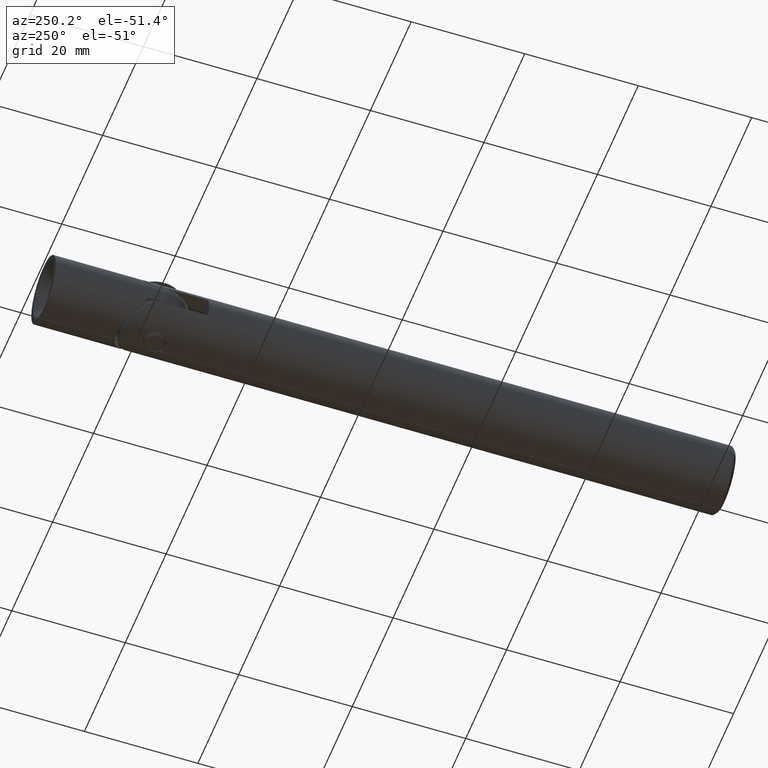
[diagram: clean part render]
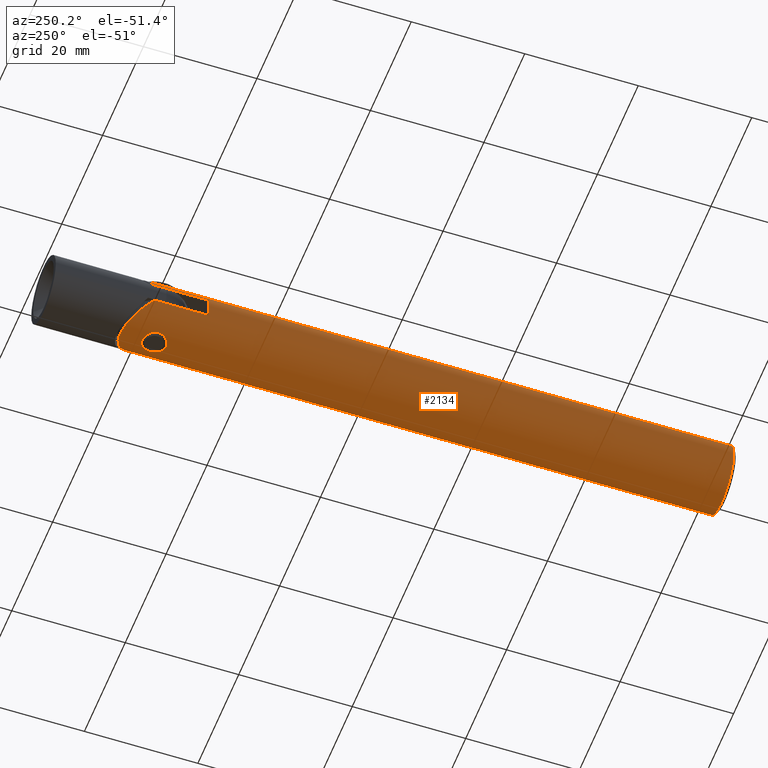
[diagram: same view with one face highlighted and labeled with its STEP entity id]
A machine part, auxiliary view. The second image highlights one B-rep face of the part: STEP entity #2134.
In plain terms, the highlighted cylindrical surface (bore or boss wall) has radius 6 mm, axis along (0, -1, -0).
Its self-contained STEP definition (entity closure, byte-faithful):
#23 = CARTESIAN_POINT ( 'NONE',  ( 4.461315443328743400, 59.49275179565076900, -4.029132544682180000 ) ) ;
#24 = CARTESIAN_POINT ( 'NONE',  ( -1.999999999999998200, 58.49999999999998600, -5.656854249492383200 ) ) ;
#45 = CARTESIAN_POINT ( 'NONE',  ( -5.907600806349173600, 54.67927346228744800, 1.055318436482937300 ) ) ;
#75 = CARTESIAN_POINT ( 'NONE',  ( 4.228689934642520000, 59.12696389998645000, 4.259931322625759800 ) ) ;
#83 = CARTESIAN_POINT ( 'NONE',  ( -6.000000000000021300, 54.40000000000000600, 0.1399303184415942000 ) ) ;
#130 = EDGE_CURVE ( 'NONE', #10797, #1767, #1331, .T. ) ;
#245 = ORIENTED_EDGE ( 'NONE', *, *, #11942, .F. ) ;
#251 = DIRECTION ( 'NONE',  ( -0.0000000000000000000, -1.000000000000000000, -0.0000000000000000000 ) ) ;
#257 = CARTESIAN_POINT ( 'NONE',  ( -1.999999999999998200, 58.49999999999998600, -5.656854249492383200 ) ) ;
#301 = VERTEX_POINT ( 'NONE', #5447 ) ;
#569 = ORIENTED_EDGE ( 'NONE', *, *, #857, .F. ) ;
#609 = VERTEX_POINT ( 'NONE', #4826 ) ;
#663 = CARTESIAN_POINT ( 'NONE',  ( 5.762565109398845000, 51.78738380356013200, 1.687899081049581800 ) ) ;
#748 = FACE_OUTER_BOUND ( 'NONE', #2882, .T. ) ;
#756 = CARTESIAN_POINT ( 'NONE',  ( 5.879915694987170500, 51.64459168928934200, -1.217818505035710400 ) ) ;
#761 = DIRECTION ( 'NONE',  ( 0.0000000000000000000, 1.000000000000000000, 0.0000000000000000000 ) ) ;
#828 = LINE ( 'NONE', #6771, #8385 ) ;
#835 = AXIS2_PLACEMENT_3D ( 'NONE', #1140, #12121, #8659 ) ;
#846 = CARTESIAN_POINT ( 'NONE',  ( 4.807646436193606700, 53.01764860879649900, 3.594557953550066900 ) ) ;
#857 = EDGE_CURVE ( 'NONE', #301, #11149, #2700, .T. ) ;
#869 = VERTEX_POINT ( 'NONE', #6050 ) ;
#972 = CARTESIAN_POINT ( 'NONE',  ( 8.399999999999989700, 64.89999999999999100, 3.394112549695417900 ) ) ;
#998 = CARTESIAN_POINT ( 'NONE',  ( -5.995114773543329000, 54.41384445011706100, 0.2773110508732142300 ) ) ;
#1009 = CARTESIAN_POINT ( 'NONE',  ( -1.999999999999990900, -2.668805347656614400E-016, -5.656854249492383200 ) ) ;
#1016 = DIRECTION ( 'NONE',  ( -0.0000000000000000000, 1.000000000000000000, -0.0000000000000000000 ) ) ;
#1055 = CARTESIAN_POINT ( 'NONE',  ( -5.862382304820061000, 58.16817008969967900, -1.282893921177704400 ) ) ;
#1081 = CARTESIAN_POINT ( 'NONE',  ( 2.000000000000001800, 58.50000000000000700, 5.656854249492374400 ) ) ;
#1102 = CARTESIAN_POINT ( 'NONE',  ( -5.659936331073165400, 57.17888782546736300, 1.992054000542899900 ) ) ;
#1140 = CARTESIAN_POINT ( 'NONE',  ( 0.0000000000000000000, 0.0000000000000000000, 0.0000000000000000000 ) ) ;
#1145 = CARTESIAN_POINT ( 'NONE',  ( -5.838097357248575900, 58.08182860238455400, -1.388036528353562500 ) ) ;
#1189 = CARTESIAN_POINT ( 'NONE',  ( 5.999766363344013700, 61.49971963595898200, -0.2522049148149580500 ) ) ;
#1199 = CARTESIAN_POINT ( 'NONE',  ( -5.995120906657179600, 58.58617705065579900, 0.2777402781516125600 ) ) ;
#1255 = VERTEX_POINT ( 'NONE', #11290 ) ;
#1331 = CIRCLE ( 'NONE', #9869, 6.000000000000000000 ) ;
#1368 = CARTESIAN_POINT ( 'NONE',  ( -6.000000000000023100, 54.40000000000000600, 0.0000000000000000000 ) ) ;
#1369 = EDGE_CURVE ( 'NONE', #4776, #1255, #5989, .T. ) ;
#1540 = CARTESIAN_POINT ( 'NONE',  ( 4.000000000000000000, 58.73606797749978600, -4.472135954999579600 ) ) ;
#1603 = EDGE_CURVE ( 'NONE', #4772, #4772, #7017, .T. ) ;
#1653 = CARTESIAN_POINT ( 'NONE',  ( 0.0000000000000000000, 49.00000000000000000, 0.0000000000000000000 ) ) ;
#1767 = VERTEX_POINT ( 'NONE', #7717 ) ;
#1783 = CARTESIAN_POINT ( 'NONE',  ( 5.248398599822291300, 52.43162905925137100, -2.915557178308601800 ) ) ;
#1821 = CARTESIAN_POINT ( 'NONE',  ( 5.246070261389828500, 52.43463899172638100, 2.919636966049659100 ) ) ;
#2093 = DIRECTION ( 'NONE',  ( 2.664535259100376100E-015, 0.0000000000000000000, -1.000000000000000000 ) ) ;
#2127 = CARTESIAN_POINT ( 'NONE',  ( -5.645550960297863500, 55.95174454621473400, 2.031893931028324800 ) ) ;
#2134 = ADVANCED_FACE ( 'NONE', ( #10877, #11579, #5879, #748 ), #13813, .T. ) ;
#2171 = CARTESIAN_POINT ( 'NONE',  ( -5.714120875558125000, 55.44005939666729400, 1.833344241584948600 ) ) ;
#2194 = CARTESIAN_POINT ( 'NONE',  ( 2.000000000000001800, 58.50000000000000700, -5.656854249492374400 ) ) ;
#2213 = VERTEX_POINT ( 'NONE', #1368 ) ;
#2221 = CARTESIAN_POINT ( 'NONE',  ( -5.995199655506464600, 58.58640234378476200, -0.2760850920997882700 ) ) ;
#2245 = DIRECTION ( 'NONE',  ( -0.0000000000000000000, -1.000000000000000000, -0.0000000000000000000 ) ) ;
#2262 = CARTESIAN_POINT ( 'NONE',  ( 5.691937540506648600, 61.12619348983290700, -1.911543563505184700 ) ) ;
#2267 = CARTESIAN_POINT ( 'NONE',  ( -5.999981683544567600, 58.59994766726690300, 0.1386258689238636400 ) ) ;
#2308 = CARTESIAN_POINT ( 'NONE',  ( 4.923739787570558400, 60.14038394394098200, 3.434699158272672500 ) ) ;
#2313 = CARTESIAN_POINT ( 'NONE',  ( -5.788737489101016800, 57.88859097663733200, 1.581278183707605800 ) ) ;
#2341 = CARTESIAN_POINT ( 'NONE',  ( -1.999999999999997300, 49.00000000000000000, 5.656854249492382400 ) ) ;
#2401 = CARTESIAN_POINT ( 'NONE',  ( 5.984333450484842700, 61.48123203078348800, -0.4991232668755338800 ) ) ;
#2692 = CARTESIAN_POINT ( 'NONE',  ( -1.999999999999998200, 58.49999999999998600, 5.656854249492383200 ) ) ;
#2700 = CIRCLE ( 'NONE', #13203, 6.000000000000000000 ) ;
#2760 = VECTOR ( 'NONE', #761, 1000.000000000000000 ) ;
#2879 = CARTESIAN_POINT ( 'NONE',  ( 5.984333450484842700, 51.51876796921653300, 0.4991232668755338800 ) ) ;
#2882 = EDGE_LOOP ( 'NONE', ( #3606, #245, #4086, #7681, #4793, #6308, #569, #10318 ) ) ;
#2980 = CARTESIAN_POINT ( 'NONE',  ( 6.000228370917401600, 51.49972595484590000, -0.2409631312233150900 ) ) ;
#3058 = CARTESIAN_POINT ( 'NONE',  ( 4.580100148548351200, 53.33921903976218500, -3.880325838228255300 ) ) ;
#3214 = CARTESIAN_POINT ( 'NONE',  ( -5.696257661656738400, 57.43453772302084600, 1.885684773470328600 ) ) ;
#3266 = CARTESIAN_POINT ( 'NONE',  ( -5.660027428170492300, 57.17956898203461700, -1.991790499454961600 ) ) ;
#3311 = CARTESIAN_POINT ( 'NONE',  ( 5.922818591520822000, 61.40715862449707900, -0.9907526502935075600 ) ) ;
#3318 = CARTESIAN_POINT ( 'NONE',  ( -5.645484189008471700, 57.04741240069299100, 2.032077313730789000 ) ) ;
#3353 = CARTESIAN_POINT ( 'NONE',  ( 6.000228370917401600, 61.50027404515408600, 0.2409631312233150900 ) ) ;
#3357 = CARTESIAN_POINT ( 'NONE',  ( -5.764126152619214200, 55.20779043723294400, -1.677594955765177900 ) ) ;
#3406 = VECTOR ( 'NONE', #2245, 1000.000000000000000 ) ;
#3426 = VECTOR ( 'NONE', #10463, 1000.000000000000000 ) ;
#3594 = EDGE_CURVE ( 'NONE', #609, #4776, #8345, .T. ) ;
#3606 = ORIENTED_EDGE ( 'NONE', *, *, #7859, .F. ) ;
#3613 = CARTESIAN_POINT ( 'NONE',  ( 4.807646436193606700, 59.98235139120350100, -3.594557953550066900 ) ) ;
#4065 = CARTESIAN_POINT ( 'NONE',  ( 4.000000000000000000, 54.26393202250022100, -4.472135954999579600 ) ) ;
#4086 = ORIENTED_EDGE ( 'NONE', *, *, #130, .F. ) ;
#4168 = CARTESIAN_POINT ( 'NONE',  ( 4.462846586125851700, 53.51066555571642200, -4.013954880855022700 ) ) ;
#4201 = ORIENTED_EDGE ( 'NONE', *, *, #1603, .T. ) ;
#4269 = CARTESIAN_POINT ( 'NONE',  ( -5.620495973474040100, 56.63830719845388700, -2.100005955277878000 ) ) ;
#4325 = CARTESIAN_POINT ( 'NONE',  ( -5.645590759985880800, 57.04844510572134900, -2.031781744484796500 ) ) ;
#4372 = CARTESIAN_POINT ( 'NONE',  ( -6.000000000000022200, 54.40000000000000600, 1.626303258728256700E-016 ) ) ;
#4406 = CARTESIAN_POINT ( 'NONE',  ( 5.879915694987170500, 61.35540831071066500, 1.217818505035710400 ) ) ;
#4413 = CARTESIAN_POINT ( 'NONE',  ( -5.907370391185573100, 58.31997403456112700, 1.056572057962526800 ) ) ;
#4465 = CARTESIAN_POINT ( 'NONE',  ( -6.000000000000023100, 54.40000000000000600, -0.1399303184415913700 ) ) ;
#4507 = CARTESIAN_POINT ( 'NONE',  ( 4.810527154161735400, 59.98631473174707200, 3.590692757759570400 ) ) ;
#4754 = DIRECTION ( 'NONE',  ( 0.0000000000000000000, 0.0000000000000000000, -1.000000000000000000 ) ) ;
#4767 = VECTOR ( 'NONE', #11309, 1000.000000000000000 ) ;
#4772 = VERTEX_POINT ( 'NONE', #11125 ) ;
#4776 = VERTEX_POINT ( 'NONE', #13700 ) ;
#4793 = ORIENTED_EDGE ( 'NONE', *, *, #13952, .F. ) ;
#4826 = CARTESIAN_POINT ( 'NONE',  ( 4.000000000000000000, 54.26393202250022100, 4.472135954999579600 ) ) ;
#4930 = EDGE_CURVE ( 'NONE', #2213, #2213, #12972, .T. ) ;
#5074 = CARTESIAN_POINT ( 'NONE',  ( 5.440223127281996100, 52.18700398623339300, 2.539587668569149400 ) ) ;
#5167 = CARTESIAN_POINT ( 'NONE',  ( 5.765159873374364500, 51.78421272223528900, -1.679113494019366800 ) ) ;
#5373 = CARTESIAN_POINT ( 'NONE',  ( -5.862417377531366800, 54.83169686617355900, 1.282773082496066800 ) ) ;
#5413 = CARTESIAN_POINT ( 'NONE',  ( -5.625674900985019100, 56.22331156717722000, 2.086293483836127600 ) ) ;
#5447 = CARTESIAN_POINT ( 'NONE',  ( 2.000000000000002700, 49.00000000000000000, -5.656854249492378800 ) ) ;
#5466 = CARTESIAN_POINT ( 'NONE',  ( -5.625794041661614600, 56.77866755094038400, -2.085970634324534300 ) ) ;
#5519 = CARTESIAN_POINT ( 'NONE',  ( -5.837892061353310100, 54.91897263378792400, -1.388843066986826800 ) ) ;
#5536 = AXIS2_PLACEMENT_3D ( 'NONE', #6414, #12125, #9932 ) ;
#5558 = CARTESIAN_POINT ( 'NONE',  ( 5.248398599822291300, 60.56837094074863600, 2.915557178308601800 ) ) ;
#5694 = CARTESIAN_POINT ( 'NONE',  ( 5.533395651579973600, 60.92966587720659500, 2.330991376508200700 ) ) ;
#5700 = CARTESIAN_POINT ( 'NONE',  ( -1.999999999999998200, 58.49999999999998600, 5.656854249492383200 ) ) ;
#5771 = VERTEX_POINT ( 'NONE', #14015 ) ;
#5879 = FACE_BOUND ( 'NONE', #6328, .T. ) ;
#5885 =( BOUNDED_CURVE ( )  B_SPLINE_CURVE ( 3, ( #1081, #972, #8598, #2194 ),
 .UNSPECIFIED., .F., .F. ) 
 B_SPLINE_CURVE_WITH_KNOTS ( ( 4, 4 ),
 ( 1.910633236249020400, 4.372552070930566100 ),
 .UNSPECIFIED. ) 
 CURVE ( )  GEOMETRIC_REPRESENTATION_ITEM ( )  RATIONAL_B_SPLINE_CURVE ( ( 1.000000000000000000, 0.5555555555555566900, 0.5555555555555566900, 1.000000000000000000 ) ) 
 REPRESENTATION_ITEM ( '' )  );
#5901 = DIRECTION ( 'NONE',  ( -0.0000000000000000000, 1.000000000000000000, -0.0000000000000000000 ) ) ;
#5921 = ORIENTED_EDGE ( 'NONE', *, *, #7370, .F. ) ;
#5928 = CARTESIAN_POINT ( 'NONE',  ( 4.223394625119318800, 59.13568843155969300, -4.272325727969625400 ) ) ;
#5989 = LINE ( 'NONE', #13746, #3426 ) ;
#6050 = CARTESIAN_POINT ( 'NONE',  ( 4.000000000000000000, 58.73606797749978600, 4.472135954999579600 ) ) ;
#6065 = B_SPLINE_CURVE_WITH_KNOTS ( 'NONE', 3,
 ( #1540, #5928, #23, #3613, #9365, #7263, #8399, #14031, #10889, #2262, #10076, #10997, #3311, #2401, #1189, #3353, #13231, #7709, #4406, #12157, #7760, #5694, #8852, #5558, #6555, #2308, #4507, #12119, #9979, #75, #7844, #12300 ),
 .UNSPECIFIED., .F., .F.,
 ( 4, 2, 2, 2, 2, 2, 2, 2, 2, 2, 2, 2, 2, 2, 2, 4 ),
 ( 0.0000000000000000000, 0.001477833795125598200, 0.002216750692688403600, 0.002955667590251208500, 0.003694584487814013500, 0.004433501385376819300, 0.005172418282939624700, 0.005911335180502430000, 0.006650252078065235400, 0.007389168975628041700, 0.008128085873190846200, 0.008867002770753652400, 0.009605919668316457000, 0.01034483656587926300, 0.01108375346344206900, 0.01182267036100487900 ),
 .UNSPECIFIED. ) ;
#6119 = CARTESIAN_POINT ( 'NONE',  ( 5.141831821744305300, 52.56964407484139900, 3.098745170681814100 ) ) ;
#6303 = CARTESIAN_POINT ( 'NONE',  ( 5.530168985700138200, 52.07436080879349300, 2.338671150420102300 ) ) ;
#6308 = ORIENTED_EDGE ( 'NONE', *, *, #8488, .F. ) ;
#6328 = EDGE_LOOP ( 'NONE', ( #9819, #9535, #5921, #6759 ) ) ;
#6414 = CARTESIAN_POINT ( 'NONE',  ( 0.0000000000000000000, -43.49999999999998600, 0.0000000000000000000 ) ) ;
#6451 = CARTESIAN_POINT ( 'NONE',  ( -5.660214997163485900, 55.81905022517152300, -1.991246174694212100 ) ) ;
#6461 = DIRECTION ( 'NONE',  ( 0.0000000000000000000, 1.000000000000000000, 0.0000000000000000000 ) ) ;
#6506 = CARTESIAN_POINT ( 'NONE',  ( -5.645475466979342500, 55.95248546903614800, -2.032103204105489600 ) ) ;
#6524 = CARTESIAN_POINT ( 'NONE',  ( 0.0000000000000000000, 49.00000000000000000, 0.0000000000000000000 ) ) ;
#6555 = CARTESIAN_POINT ( 'NONE',  ( 5.142492798692936500, 60.43121023963444600, 3.097602237043295000 ) ) ;
#6562 = CARTESIAN_POINT ( 'NONE',  ( -5.837728522015402700, 54.91958793518747200, 1.389511688007993400 ) ) ;
#6601 = CARTESIAN_POINT ( 'NONE',  ( -5.962656029525710700, 54.50857432222212400, -0.6805891605157762300 ) ) ;
#6648 = CARTESIAN_POINT ( 'NONE',  ( -5.962577447961945300, 54.50881110973995200, 0.6812341139050348500 ) ) ;
#6759 = ORIENTED_EDGE ( 'NONE', *, *, #1369, .F. ) ;
#6771 = CARTESIAN_POINT ( 'NONE',  ( 4.000000000000000000, 0.0000000000000000000, 4.472135954999579600 ) ) ;
#7017 = CIRCLE ( 'NONE', #5536, 6.000000000000000000 ) ;
#7126 = EDGE_CURVE ( 'NONE', #5771, #301, #11160, .T. ) ;
#7263 = CARTESIAN_POINT ( 'NONE',  ( 5.141831821744305300, 60.43035592515862200, -3.098745170681814100 ) ) ;
#7313 = CARTESIAN_POINT ( 'NONE',  ( 5.877739533197925900, 51.64722586606338000, 1.228144098935931800 ) ) ;
#7320 = CARTESIAN_POINT ( 'NONE',  ( 2.000000000000017300, 6.004812032227462000E-016, 5.656854249492374400 ) ) ;
#7370 = EDGE_CURVE ( 'NONE', #1255, #869, #6065, .T. ) ;
#7412 = CARTESIAN_POINT ( 'NONE',  ( 4.228689934642520000, 53.87303610001356400, -4.259931322625759800 ) ) ;
#7572 = CARTESIAN_POINT ( 'NONE',  ( -5.976522812652002700, 54.46789056384757500, 0.5472454995192391800 ) ) ;
#7620 = CARTESIAN_POINT ( 'NONE',  ( -5.625710555255437000, 56.77710622439826000, 2.086195265504061400 ) ) ;
#7637 = CARTESIAN_POINT ( 'NONE',  ( -1.999999999999997300, 49.00000000000000000, -5.656854249492383200 ) ) ;
#7656 = EDGE_LOOP ( 'NONE', ( #4201 ) ) ;
#7681 = ORIENTED_EDGE ( 'NONE', *, *, #8759, .F. ) ;
#7709 = CARTESIAN_POINT ( 'NONE',  ( 5.924588586478166400, 61.40929349922409100, 0.9800564602597378000 ) ) ;
#7716 = CARTESIAN_POINT ( 'NONE',  ( -5.620534980703879100, 56.36030547766085200, 2.099901555218826000 ) ) ;
#7717 = CARTESIAN_POINT ( 'NONE',  ( 2.000000000000002700, 49.00000000000000000, 5.656854249492378800 ) ) ;
#7760 = CARTESIAN_POINT ( 'NONE',  ( 5.694344034310240100, 61.12914963333969400, 1.904319892558799900 ) ) ;
#7814 =( BOUNDED_CURVE ( )  B_SPLINE_CURVE ( 3, ( #24, #8778, #12167, #5700 ),
 .UNSPECIFIED., .F., .F. ) 
 B_SPLINE_CURVE_WITH_KNOTS ( ( 4, 4 ),
 ( 1.910633236249017700, 4.372552070930568700 ),
 .UNSPECIFIED. ) 
 CURVE ( )  GEOMETRIC_REPRESENTATION_ITEM ( )  RATIONAL_B_SPLINE_CURVE ( ( 1.000000000000000000, 0.5555555555555549100, 0.5555555555555549100, 1.000000000000000000 ) ) 
 REPRESENTATION_ITEM ( '' )  );
#7844 = CARTESIAN_POINT ( 'NONE',  ( 4.111701916349391100, 58.93588644003916200, 4.372226723729887100 ) ) ;
#7859 = EDGE_CURVE ( 'NONE', #8958, #5771, #5885, .T. ) ;
#8345 = B_SPLINE_CURVE_WITH_KNOTS ( 'NONE', 3,
 ( #11479, #13844, #9574, #846, #10743, #6119, #1821, #5074, #6303, #9487, #663, #7313, #10656, #2879, #13939, #2980, #11677, #11816, #756, #5167, #12889, #13986, #8422, #1783, #9626, #14025, #10706, #3058, #4168, #7412, #9438, #4065 ),
 .UNSPECIFIED., .F., .F.,
 ( 4, 2, 2, 2, 2, 2, 2, 2, 2, 2, 2, 2, 2, 2, 2, 4 ),
 ( 0.0000000000000000000, 0.001477833795125598200, 0.002216750692688403600, 0.002955667590251208500, 0.003694584487814013500, 0.004433501385376819300, 0.005172418282939624700, 0.005911335180502430000, 0.006650252078065235400, 0.007389168975628041700, 0.008128085873190846200, 0.008867002770753652400, 0.009605919668316457000, 0.01034483656587926300, 0.01108375346344206900, 0.01182267036100487900 ),
 .UNSPECIFIED. ) ;
#8385 = VECTOR ( 'NONE', #251, 1000.000000000000000 ) ;
#8399 = CARTESIAN_POINT ( 'NONE',  ( 5.246070261389828500, 60.56536100827363400, -2.919636966049659100 ) ) ;
#8422 = CARTESIAN_POINT ( 'NONE',  ( 5.443493514455042300, 52.18287411686601700, -2.532694194072648800 ) ) ;
#8488 = EDGE_CURVE ( 'NONE', #11149, #10911, #14164, .T. ) ;
#8598 = CARTESIAN_POINT ( 'NONE',  ( 8.399999999999989700, 64.89999999999999100, -3.394112549695417900 ) ) ;
#8659 = DIRECTION ( 'NONE',  ( 0.0000000000000000000, 0.0000000000000000000, -1.000000000000000000 ) ) ;
#8664 = CARTESIAN_POINT ( 'NONE',  ( -5.764135783203780500, 55.20780291030302300, 1.677500159237455900 ) ) ;
#8716 = CARTESIAN_POINT ( 'NONE',  ( -5.976435261253111100, 58.53185488229728200, -0.5485102145950200300 ) ) ;
#8759 = EDGE_CURVE ( 'NONE', #9937, #10797, #12896, .T. ) ;
#8775 = CARTESIAN_POINT ( 'NONE',  ( -5.717652440165350600, 57.55537900398620400, 1.820638573103270800 ) ) ;
#8778 = CARTESIAN_POINT ( 'NONE',  ( -8.400000000000003900, 64.90000000000000600, -3.394112549695431600 ) ) ;
#8823 = CARTESIAN_POINT ( 'NONE',  ( -5.976552651432207600, 54.46780339334684800, -0.5468734143387925500 ) ) ;
#8852 = CARTESIAN_POINT ( 'NONE',  ( 5.443493514455042300, 60.81712588313401100, 2.532694194072648800 ) ) ;
#8859 = CARTESIAN_POINT ( 'NONE',  ( -6.000018211104130500, 58.60005203172936900, -0.1370357647622493200 ) ) ;
#8958 = VERTEX_POINT ( 'NONE', #9509 ) ;
#9006 = CARTESIAN_POINT ( 'NONE',  ( -6.000000000000022200, 54.40000000000000600, 1.626303258728256700E-016 ) ) ;
#9076 = CARTESIAN_POINT ( 'NONE',  ( -1.999999999999990900, -2.668805347656614400E-016, 5.656854249492383200 ) ) ;
#9365 = CARTESIAN_POINT ( 'NONE',  ( 4.922195747481139500, 60.13830650053680700, -3.436952885828493900 ) ) ;
#9438 = CARTESIAN_POINT ( 'NONE',  ( 4.111701916349391100, 54.06411355996083800, -4.372226723729887100 ) ) ;
#9487 = CARTESIAN_POINT ( 'NONE',  ( 5.691937540506648600, 51.87380651016710000, 1.911543563505184700 ) ) ;
#9509 = CARTESIAN_POINT ( 'NONE',  ( 2.000000000000001800, 58.50000000000000700, 5.656854249492374400 ) ) ;
#9535 = ORIENTED_EDGE ( 'NONE', *, *, #13382, .F. ) ;
#9574 = CARTESIAN_POINT ( 'NONE',  ( 4.461315443328743400, 53.50724820434923100, 4.029132544682180000 ) ) ;
#9610 = EDGE_LOOP ( 'NONE', ( #13923 ) ) ;
#9626 = CARTESIAN_POINT ( 'NONE',  ( 5.142492798692936500, 52.56878976036555400, -3.097602237043295000 ) ) ;
#9785 = CARTESIAN_POINT ( 'NONE',  ( -5.928263369488839800, 58.38594329488584100, 0.9337857770029894800 ) ) ;
#9819 = ORIENTED_EDGE ( 'NONE', *, *, #3594, .F. ) ;
#9840 = CARTESIAN_POINT ( 'NONE',  ( -5.838037281970526800, 58.08157595086449700, 1.388251816607981400 ) ) ;
#9869 = AXIS2_PLACEMENT_3D ( 'NONE', #6524, #1016, #2093 ) ;
#9883 = CARTESIAN_POINT ( 'NONE',  ( -5.928316084038137900, 58.38611217464042400, -0.9335114993840649700 ) ) ;
#9931 = CARTESIAN_POINT ( 'NONE',  ( -5.995110587510880300, 54.41385704966407400, -0.2773106023340061200 ) ) ;
#9932 = DIRECTION ( 'NONE',  ( 0.0000000000000000000, 0.0000000000000000000, 1.000000000000000000 ) ) ;
#9937 = VERTEX_POINT ( 'NONE', #2692 ) ;
#9979 = CARTESIAN_POINT ( 'NONE',  ( 4.462846586125851700, 59.48933444428358500, 4.013954880855022700 ) ) ;
#9987 = CARTESIAN_POINT ( 'NONE',  ( -5.620461810260684900, 56.63671887526762600, 2.100097390676811700 ) ) ;
#10076 = CARTESIAN_POINT ( 'NONE',  ( 5.762565109398845000, 61.21261619643987500, -1.687899081049581800 ) ) ;
#10318 = ORIENTED_EDGE ( 'NONE', *, *, #7126, .F. ) ;
#10463 = DIRECTION ( 'NONE',  ( 0.0000000000000000000, 1.000000000000000000, 0.0000000000000000000 ) ) ;
#10656 = CARTESIAN_POINT ( 'NONE',  ( 5.922818591520822000, 51.59284137550290700, 0.9907526502935075600 ) ) ;
#10706 = CARTESIAN_POINT ( 'NONE',  ( 4.810527154161735400, 53.01368526825293500, -3.590692757759570400 ) ) ;
#10743 = CARTESIAN_POINT ( 'NONE',  ( 4.922195747481139500, 52.86169349946319300, 3.436952885828493900 ) ) ;
#10797 = VERTEX_POINT ( 'NONE', #2341 ) ;
#10864 = CARTESIAN_POINT ( 'NONE',  ( -5.962585327761369000, 58.49120549525581200, 0.6810570200218724100 ) ) ;
#10877 = FACE_OUTER_BOUND ( 'NONE', #7656, .T. ) ;
#10889 = CARTESIAN_POINT ( 'NONE',  ( 5.530168985700138200, 60.92563919120651400, -2.338671150420102300 ) ) ;
#10907 = CARTESIAN_POINT ( 'NONE',  ( -5.907416619898394400, 58.32011985356817300, -1.056301083882026800 ) ) ;
#10911 = VERTEX_POINT ( 'NONE', #257 ) ;
#10951 = CARTESIAN_POINT ( 'NONE',  ( -5.714140928245533300, 55.43979168332396800, -1.833295944888412100 ) ) ;
#10997 = CARTESIAN_POINT ( 'NONE',  ( 5.877739533197925900, 61.35277413393662000, -1.228144098935931800 ) ) ;
#11006 = CARTESIAN_POINT ( 'NONE',  ( -5.862276931221734000, 58.16780435487956400, 1.283385613909027800 ) ) ;
#11059 = CARTESIAN_POINT ( 'NONE',  ( -5.928068568057647700, 54.61466174882501400, 0.9351004188317556500 ) ) ;
#11125 = CARTESIAN_POINT ( 'NONE',  ( 0.0000000000000000000, -43.49999999999998600, 6.000000000000000000 ) ) ;
#11149 = VERTEX_POINT ( 'NONE', #7637 ) ;
#11160 = LINE ( 'NONE', #12188, #3406 ) ;
#11290 = CARTESIAN_POINT ( 'NONE',  ( 4.000000000000000000, 58.73606797749978600, -4.472135954999579600 ) ) ;
#11309 = DIRECTION ( 'NONE',  ( -0.0000000000000000000, -1.000000000000000000, -0.0000000000000000000 ) ) ;
#11479 = CARTESIAN_POINT ( 'NONE',  ( 4.000000000000000000, 54.26393202250022100, 4.472135954999579600 ) ) ;
#11579 = FACE_BOUND ( 'NONE', #9610, .T. ) ;
#11677 = CARTESIAN_POINT ( 'NONE',  ( 5.985179456329539100, 51.51775292995564100, -0.4887611480621569200 ) ) ;
#11816 = CARTESIAN_POINT ( 'NONE',  ( 5.924588586478166400, 51.59070650077591600, -0.9800564602597378000 ) ) ;
#11942 = EDGE_CURVE ( 'NONE', #1767, #8958, #13770, .T. ) ;
#11972 = CARTESIAN_POINT ( 'NONE',  ( -5.625620362231069600, 56.22434918229801300, -2.086440083120678000 ) ) ;
#12026 = CARTESIAN_POINT ( 'NONE',  ( -5.620500425096843800, 56.36151201561114700, -2.099994040831219000 ) ) ;
#12079 = CARTESIAN_POINT ( 'NONE',  ( -5.660313271408463200, 55.81829588089203000, 1.990963533487669900 ) ) ;
#12119 = CARTESIAN_POINT ( 'NONE',  ( 4.580100148548351200, 59.66078096023783000, 3.880325838228255300 ) ) ;
#12121 = DIRECTION ( 'NONE',  ( -0.0000000000000000000, -1.000000000000000000, -0.0000000000000000000 ) ) ;
#12124 = CARTESIAN_POINT ( 'NONE',  ( -5.763747723864383900, 57.79073301762537100, -1.679082131009266100 ) ) ;
#12125 = DIRECTION ( 'NONE',  ( -0.0000000000000000000, 1.000000000000000000, -0.0000000000000000000 ) ) ;
#12157 = CARTESIAN_POINT ( 'NONE',  ( 5.765159873374364500, 61.21578727776471100, 1.679113494019366800 ) ) ;
#12163 = CARTESIAN_POINT ( 'NONE',  ( -5.763722404570112100, 57.78170642990883000, 1.669065092636238000 ) ) ;
#12167 = CARTESIAN_POINT ( 'NONE',  ( -8.400000000000003900, 64.90000000000000600, 3.394112549695431600 ) ) ;
#12188 = CARTESIAN_POINT ( 'NONE',  ( 2.000000000000017300, 6.004812032227462000E-016, -5.656854249492374400 ) ) ;
#12281 = VECTOR ( 'NONE', #6461, 1000.000000000000000 ) ;
#12300 = CARTESIAN_POINT ( 'NONE',  ( 4.000000000000000000, 58.73606797749978600, 4.472135954999579600 ) ) ;
#12889 = CARTESIAN_POINT ( 'NONE',  ( 5.694344034310240100, 51.87085036666031400, -1.904319892558799900 ) ) ;
#12896 = LINE ( 'NONE', #9076, #4767 ) ;
#12972 = B_SPLINE_CURVE_WITH_KNOTS ( 'NONE', 3,
 ( #4372, #83, #998, #7572, #6648, #11059, #45, #5373, #6562, #8664, #2171, #12079, #2127, #5413, #7716, #9987, #7620, #3318, #1102, #3214, #8775, #12163, #2313, #9840, #11006, #4413, #9785, #10864, #13093, #1199, #2267, #8859, #2221, #8716, #14233, #9883, #10907, #1055, #1145, #12124, #13148, #3266, #4325, #5466, #4269, #12026, #11972, #6506, #6451, #10951, #3357, #5519, #13189, #14185, #13238, #6601, #8823, #9931, #4465, #9006 ),
 .UNSPECIFIED., .T., .F.,
 ( 4, 2, 2, 2, 2, 2, 2, 2, 2, 2, 2, 2, 2, 2, 2, 2, 2, 2, 2, 2, 2, 2, 2, 2, 2, 2, 2, 2, 2, 4 ),
 ( 0.0000000000000000000, 0.0004135997285891023100, 0.0008271994571782047200, 0.001240799185767307200, 0.001654398914356409900, 0.002481598371534614900, 0.002895198100123707400, 0.003308797828712799800, 0.003722397557301893600, 0.004135997285890986000, 0.004549597014480078400, 0.004963196743069171700, 0.005376796471658264200, 0.005790396200247356600, 0.006203995928836449900, 0.006617595657425542400, 0.007031195386014635700, 0.007444795114603729000, 0.007858394843192822300, 0.008271994571781916500, 0.009099194028960089200, 0.009512793757549183400, 0.009926393486138277600, 0.01033999321472737300, 0.01075359294331646800, 0.01158079240049465900, 0.01199439212908375500, 0.01240799185767285000, 0.01282159158626194400, 0.01323519131485103800 ),
 .UNSPECIFIED. ) ;
#13093 = CARTESIAN_POINT ( 'NONE',  ( -5.976299791409970500, 58.53145740739297800, 0.5499592264330748200 ) ) ;
#13148 = CARTESIAN_POINT ( 'NONE',  ( -5.714346342055214300, 57.56177595177370400, -1.832704397464465700 ) ) ;
#13189 = CARTESIAN_POINT ( 'NONE',  ( -5.862660541099057100, 54.83085686550148800, -1.281623710314717200 ) ) ;
#13203 = AXIS2_PLACEMENT_3D ( 'NONE', #1653, #5901, #4754 ) ;
#13231 = CARTESIAN_POINT ( 'NONE',  ( 5.985179456329539100, 61.48224707004437300, 0.4887611480621569200 ) ) ;
#13238 = CARTESIAN_POINT ( 'NONE',  ( -5.928103206872795500, 54.61455126428497000, -0.9349122421464501900 ) ) ;
#13382 = EDGE_CURVE ( 'NONE', #869, #609, #828, .T. ) ;
#13700 = CARTESIAN_POINT ( 'NONE',  ( 4.000000000000000000, 54.26393202250022100, -4.472135954999579600 ) ) ;
#13746 = CARTESIAN_POINT ( 'NONE',  ( 4.000000000000000000, 0.0000000000000000000, -4.472135954999579600 ) ) ;
#13770 = LINE ( 'NONE', #7320, #2760 ) ;
#13813 = CYLINDRICAL_SURFACE ( 'NONE', #835, 6.000000000000000000 ) ;
#13844 = CARTESIAN_POINT ( 'NONE',  ( 4.223394625119318800, 53.86431156844029300, 4.272325727969625400 ) ) ;
#13923 = ORIENTED_EDGE ( 'NONE', *, *, #4930, .F. ) ;
#13939 = CARTESIAN_POINT ( 'NONE',  ( 5.999766363344013700, 51.50028036404103200, 0.2522049148149580500 ) ) ;
#13952 = EDGE_CURVE ( 'NONE', #10911, #9937, #7814, .T. ) ;
#13986 = CARTESIAN_POINT ( 'NONE',  ( 5.533395651579973600, 52.07033412279341200, -2.330991376508200700 ) ) ;
#14015 = CARTESIAN_POINT ( 'NONE',  ( 2.000000000000001800, 58.50000000000000700, -5.656854249492374400 ) ) ;
#14025 = CARTESIAN_POINT ( 'NONE',  ( 4.923739787570558400, 52.85961605605903900, -3.434699158272672500 ) ) ;
#14031 = CARTESIAN_POINT ( 'NONE',  ( 5.440223127281996100, 60.81299601376662900, -2.539587668569149400 ) ) ;
#14164 = LINE ( 'NONE', #1009, #12281 ) ;
#14185 = CARTESIAN_POINT ( 'NONE',  ( -5.907653145361190500, 54.67911673378559100, -1.054979748196498900 ) ) ;
#14233 = CARTESIAN_POINT ( 'NONE',  ( -5.962726470154969100, 58.49163111568087500, -0.6799031944775902900 ) ) ;